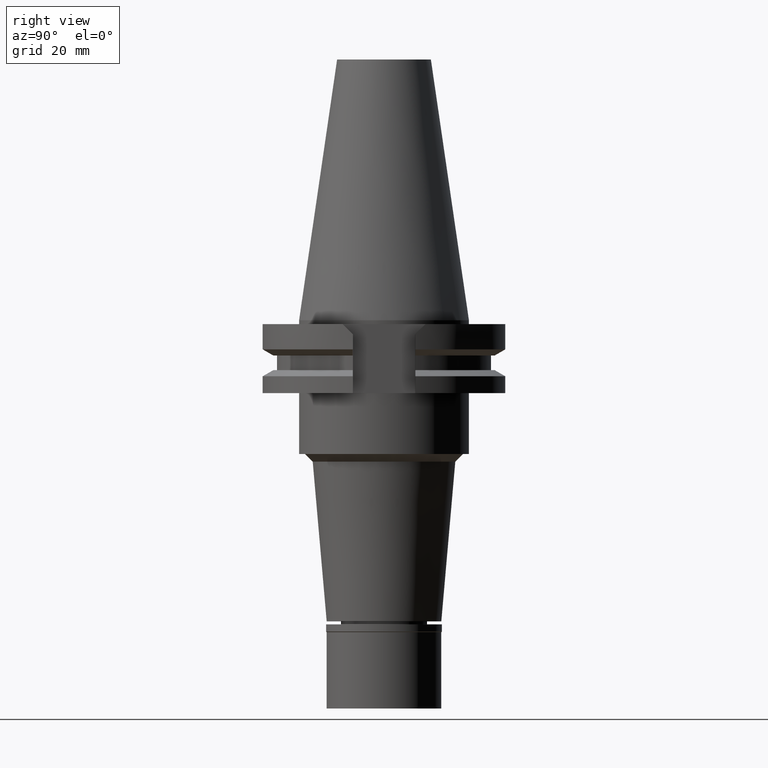
[diagram: clean part render]
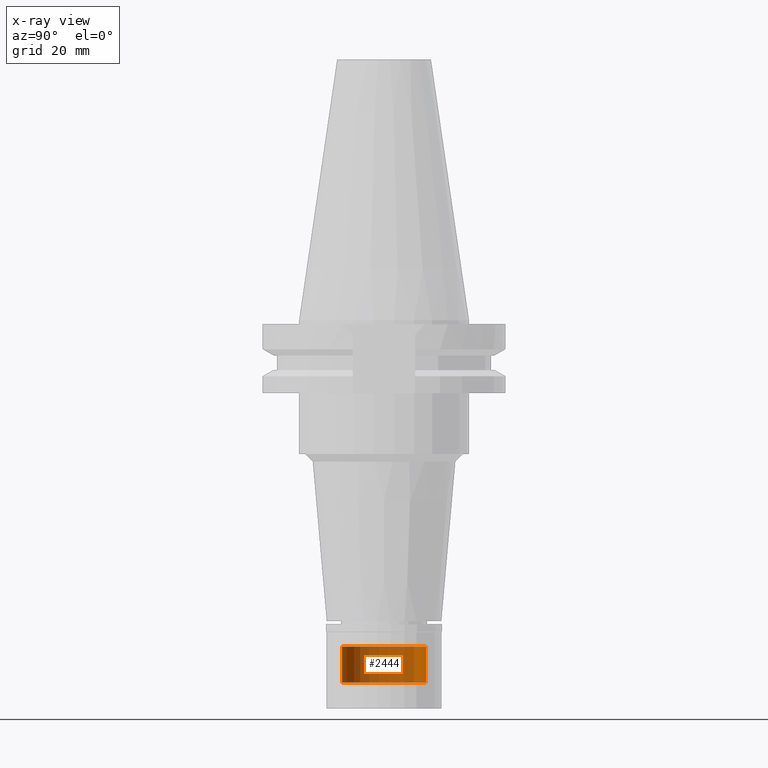
[diagram: x-ray — body ghosted, one internal face saturated and labeled with its STEP entity id]
A machine part, right view, then the same camera in x-ray: the body is ghosted and one INTERNAL B-rep face — a face not visible from any outside direction — is saturated and labeled: STEP entity #2444.
In plain terms, the highlighted cylindrical surface (partial cylindrical patch) has radius 11 mm, axis along (0, 0, -1).
Its self-contained STEP definition (entity closure, byte-faithful):
#32 = VERTEX_POINT ( 'NONE', #723 ) ;
#53 = DIRECTION ( 'NONE',  ( 0.0000000000000000000, 0.0000000000000000000, 1.000000000000000000 ) ) ;
#130 = CARTESIAN_POINT ( 'NONE',  ( 0.0000000000000000000, 11.00000000000000000, -85.40000000000000568 ) ) ;
#132 = CARTESIAN_POINT ( 'NONE',  ( 0.0000000000000000000, -11.00000000000000000, -94.89999999999999147 ) ) ;
#323 = ORIENTED_EDGE ( 'NONE', *, *, #2458, .F. ) ;
#411 = CIRCLE ( 'NONE', #2598, 11.00000000000000000 ) ;
#451 = EDGE_CURVE ( 'NONE', #2741, #3011, #2203, .T. ) ;
#542 = CARTESIAN_POINT ( 'NONE',  ( 0.0000000000000000000, 11.00000000000000000, -94.89999999999999147 ) ) ;
#562 = DIRECTION ( 'NONE',  ( 0.0000000000000000000, 1.000000000000000000, 0.0000000000000000000 ) ) ;
#723 = CARTESIAN_POINT ( 'NONE',  ( 0.0000000000000000000, -11.00000000000000000, -85.40000000000000568 ) ) ;
#754 = DIRECTION ( 'NONE',  ( 0.0000000000000000000, 0.0000000000000000000, -1.000000000000000000 ) ) ;
#852 = CIRCLE ( 'NONE', #2054, 11.00000000000000000 ) ;
#877 = DIRECTION ( 'NONE',  ( 0.0000000000000000000, 0.0000000000000000000, -1.000000000000000000 ) ) ;
#1110 = DIRECTION ( 'NONE',  ( 0.0000000000000000000, -1.000000000000000000, 0.0000000000000000000 ) ) ;
#1188 = ORIENTED_EDGE ( 'NONE', *, *, #451, .T. ) ;
#1451 = VECTOR ( 'NONE', #2356, 1000.000000000000000 ) ;
#1657 = DIRECTION ( 'NONE',  ( 0.0000000000000000000, 0.0000000000000000000, -1.000000000000000000 ) ) ;
#1672 = AXIS2_PLACEMENT_3D ( 'NONE', #2549, #754, #3088 ) ;
#1779 = CYLINDRICAL_SURFACE ( 'NONE', #1672, 11.00000000000000000 ) ;
#1922 = CARTESIAN_POINT ( 'NONE',  ( 0.0000000000000000000, 11.00000000000000000, -85.40000000000000568 ) ) ;
#1925 = EDGE_LOOP ( 'NONE', ( #2996, #323, #3247, #1188 ) ) ;
#1978 = EDGE_CURVE ( 'NONE', #32, #2741, #411, .T. ) ;
#2036 = FACE_OUTER_BOUND ( 'NONE', #1925, .T. ) ;
#2054 = AXIS2_PLACEMENT_3D ( 'NONE', #2125, #53, #562 ) ;
#2090 = EDGE_CURVE ( 'NONE', #3011, #2333, #852, .T. ) ;
#2102 = LINE ( 'NONE', #3344, #1451 ) ;
#2125 = CARTESIAN_POINT ( 'NONE',  ( 0.0000000000000000000, 2.160368802205999604E-14, -94.89999999999999147 ) ) ;
#2182 = VECTOR ( 'NONE', #877, 1000.000000000000000 ) ;
#2203 = LINE ( 'NONE', #1922, #2182 ) ;
#2333 = VERTEX_POINT ( 'NONE', #132 ) ;
#2356 = DIRECTION ( 'NONE',  ( 0.0000000000000000000, 0.0000000000000000000, -1.000000000000000000 ) ) ;
#2444 = ADVANCED_FACE ( 'NONE', ( #2036 ), #1779, .T. ) ;
#2458 = EDGE_CURVE ( 'NONE', #32, #2333, #2102, .T. ) ;
#2549 = CARTESIAN_POINT ( 'NONE',  ( 0.0000000000000000000, 2.160368802205999604E-14, 76.40749999999999886 ) ) ;
#2598 = AXIS2_PLACEMENT_3D ( 'NONE', #2649, #1657, #1110 ) ;
#2649 = CARTESIAN_POINT ( 'NONE',  ( 0.0000000000000000000, 2.160368802205999604E-14, -85.40000000000000568 ) ) ;
#2741 = VERTEX_POINT ( 'NONE', #130 ) ;
#2996 = ORIENTED_EDGE ( 'NONE', *, *, #2090, .T. ) ;
#3011 = VERTEX_POINT ( 'NONE', #542 ) ;
#3088 = DIRECTION ( 'NONE',  ( 0.0000000000000000000, -1.000000000000000000, 0.0000000000000000000 ) ) ;
#3247 = ORIENTED_EDGE ( 'NONE', *, *, #1978, .T. ) ;
#3344 = CARTESIAN_POINT ( 'NONE',  ( 0.0000000000000000000, -11.00000000000000000, -85.40000000000000568 ) ) ;